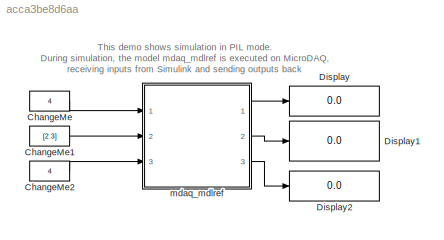
MODEL slx_acca3be8d6aa
KIND model
BLOCK [Constant] ChangeMe
  OutDataTypeStr = Inherit: Inherit via back propagation
  Value = 4
BLOCK [Constant] ChangeMe1
  OutDataTypeStr = Inherit: Inherit via back propagation
  Value = [2 3]
BLOCK [Constant] ChangeMe2
  OutDataTypeStr = Inherit: Inherit via back propagation
  Value = 4
BLOCK [Display] Display
  Decimation = 1
  Ports = [1]
BLOCK [Display] Display1
  Decimation = 1
  Ports = [1]
BLOCK [Display] Display2
  Decimation = 1
  Ports = [1]
BLOCK [ModelReference] mdaq_mdlref
  CopyOfModelName = mdaq_mdlref
  ModelNameDialog = mdaq_mdlref
  ModelReferenceVersion = 1.21
  Ports = [3, 3]
  Variant = off
ANNOTATION (root): This demo shows simulation in PIL mode. During simulation, the model mdaq_mdlref is executed on MicroDAQ, receiving inputs from Simulink and sending outputs back
LINE ChangeMe1:1 -> mdaq_mdlref:2
LINE ChangeMe2:1 -> mdaq_mdlref:3
LINE ChangeMe:1 -> mdaq_mdlref:1
LINE mdaq_mdlref:1 -> Display:1
LINE mdaq_mdlref:2 -> Display1:1
LINE mdaq_mdlref:3 -> Display2:1
